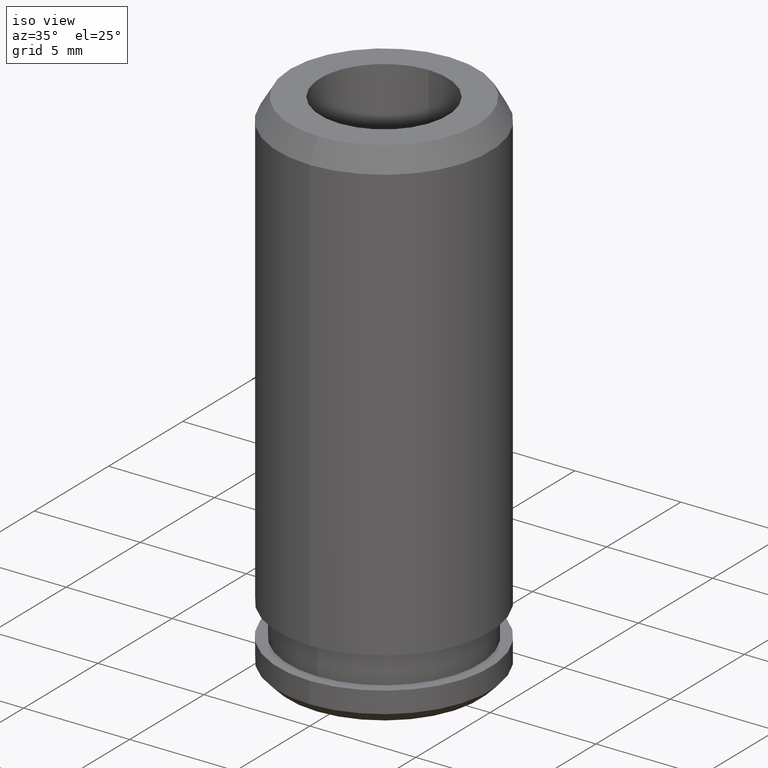
[diagram: clean part render]
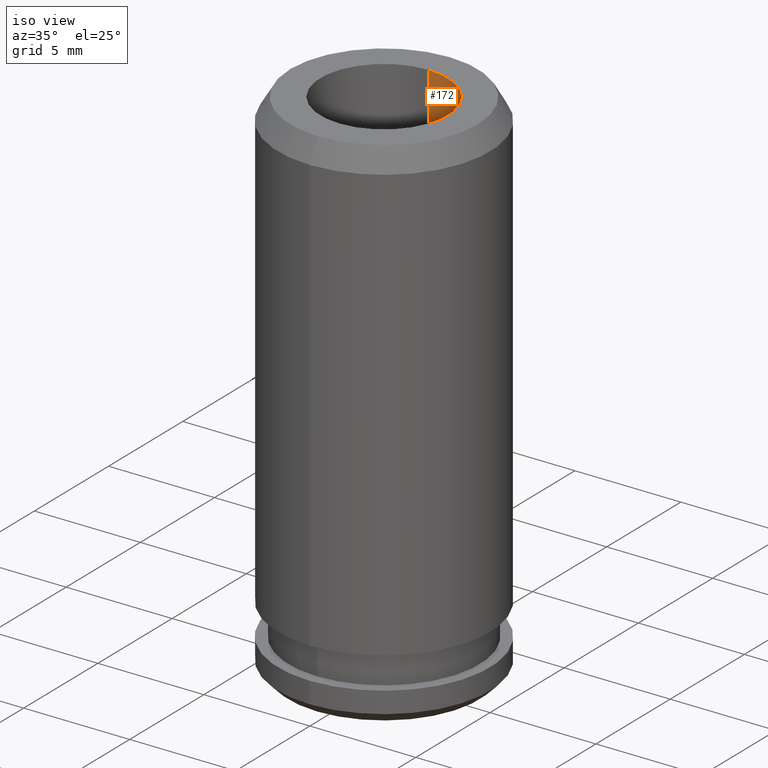
[diagram: same view with one face highlighted and labeled with its STEP entity id]
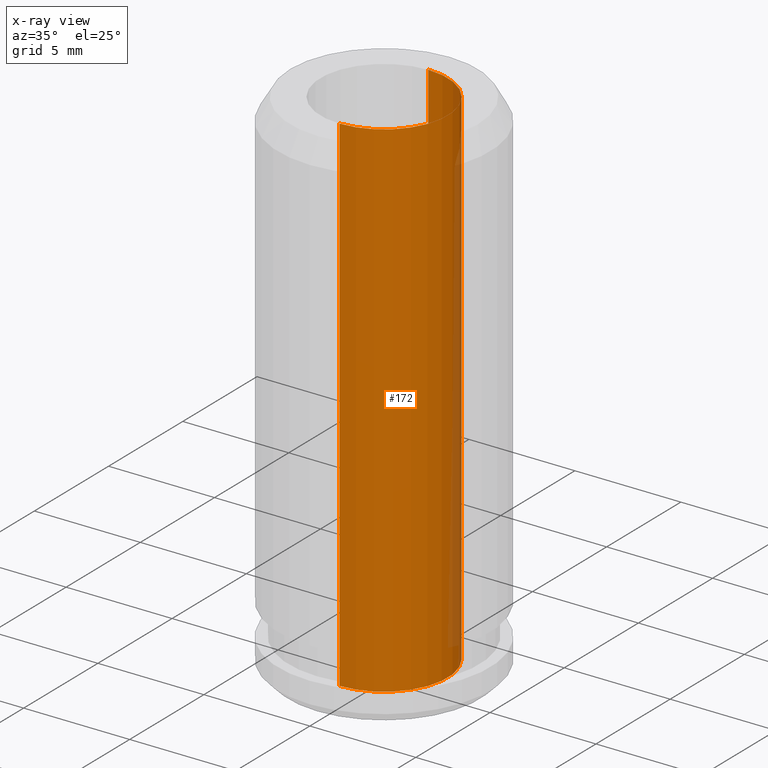
[diagram: x-ray of the same camera — body ghosted, the highlighted face saturated]
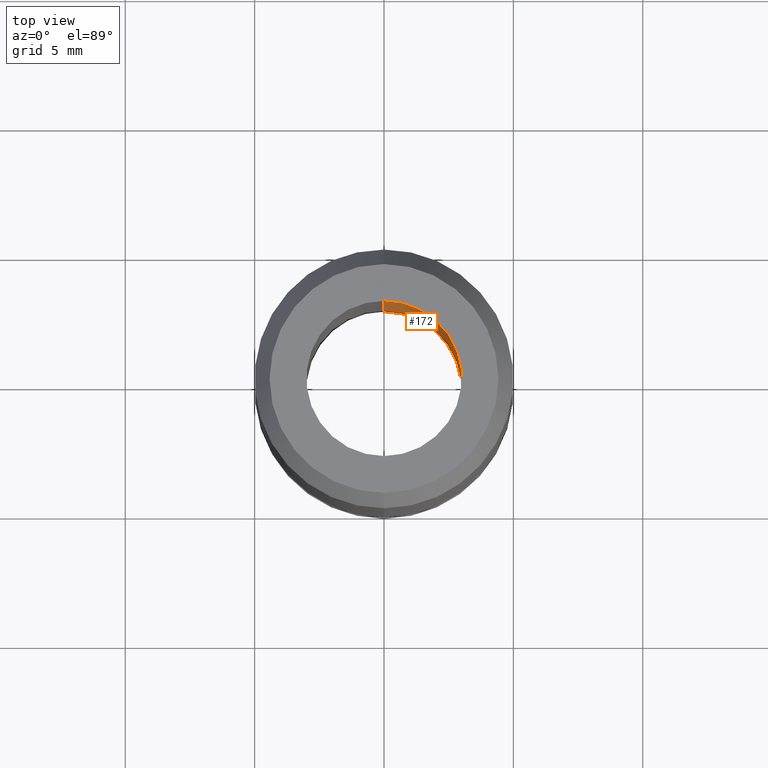
[diagram: same view with one face highlighted and labeled with its STEP entity id]
A machine part, iso view. The second image highlights one B-rep face of the part: STEP entity #172.
The next image is the same camera in x-ray: the body ghosted, the highlighted face saturated — about 7% of this face is hidden behind the body in this view.
A second angle (top view) of the same face is appended — the face is thin or edge-on in the first view.
In plain terms, the highlighted cylindrical surface (partial cylindrical patch) has radius 3 mm, axis along (0, -0, -1).
Its self-contained STEP definition (entity closure, byte-faithful):
#120=VERTEX_POINT('NONE',#291);
#122=VERTEX_POINT('NONE',#293);
#140=EDGE_CURVE('NONE',#122,#244,#311,.T.);
#172=ADVANCED_FACE('NONE',(#349),#350,.F.);
#178=VERTEX_POINT('NONE',#356);
#184=EDGE_CURVE('NONE',#178,#120,#363,.T.);
#206=EDGE_CURVE('NONE',#178,#122,#389,.T.);
#244=VERTEX_POINT('NONE',#434);
#248=EDGE_CURVE('NONE',#120,#244,#438,.T.);
#291=CARTESIAN_POINT('',(-3.67381906146713E-016,3.0,0.519615242270668));
#293=CARTESIAN_POINT('',(0.0,-3.0,24.5));
#311=LINE('',#505,#506);
#349=FACE_OUTER_BOUND('',#552,.T.);
#350=CYLINDRICAL_SURFACE('',#553,3.0);
#356=CARTESIAN_POINT('',(-3.67381906146713E-016,3.0,24.5));
#363=LINE('',#572,#573);
#389=CIRCLE('',#607,3.0);
#434=CARTESIAN_POINT('',(0.0,-3.0,0.519615242270668));
#438=CIRCLE('',#669,3.0);
#505=CARTESIAN_POINT('',(0.0,-3.0,-1.13644490972339));
#506=VECTOR('',#703,1000.0);
#552=EDGE_LOOP('',(#759,#760,#761,#762));
#553=AXIS2_PLACEMENT_3D('',#763,#764,#765);
#572=CARTESIAN_POINT('',(-3.67381906146713E-016,3.0,-1.13644490972339));
#573=VECTOR('',#779,1000.0);
#607=AXIS2_PLACEMENT_3D('',#820,#821,#822);
#669=AXIS2_PLACEMENT_3D('',#887,#888,#889);
#703=DIRECTION('',(0.0,0.0,-1.0));
#759=ORIENTED_EDGE('',*,*,#206,.F.);
#760=ORIENTED_EDGE('',*,*,#184,.T.);
#761=ORIENTED_EDGE('',*,*,#248,.T.);
#762=ORIENTED_EDGE('',*,*,#140,.F.);
#763=CARTESIAN_POINT('',(0.0,0.0,-1.13644490972339));
#764=DIRECTION('',(0.0,-0.0,-1.0));
#765=DIRECTION('',(0.0,-1.0,0.0));
#779=DIRECTION('',(0.0,0.0,-1.0));
#820=CARTESIAN_POINT('',(0.0,0.0,24.5));
#821=DIRECTION('',(0.0,0.0,-1.0));
#822=DIRECTION('',(0.0,-1.0,0.0));
#887=CARTESIAN_POINT('',(0.0,0.0,0.519615242270668));
#888=DIRECTION('',(0.0,0.0,-1.0));
#889=DIRECTION('',(0.0,-1.0,0.0));